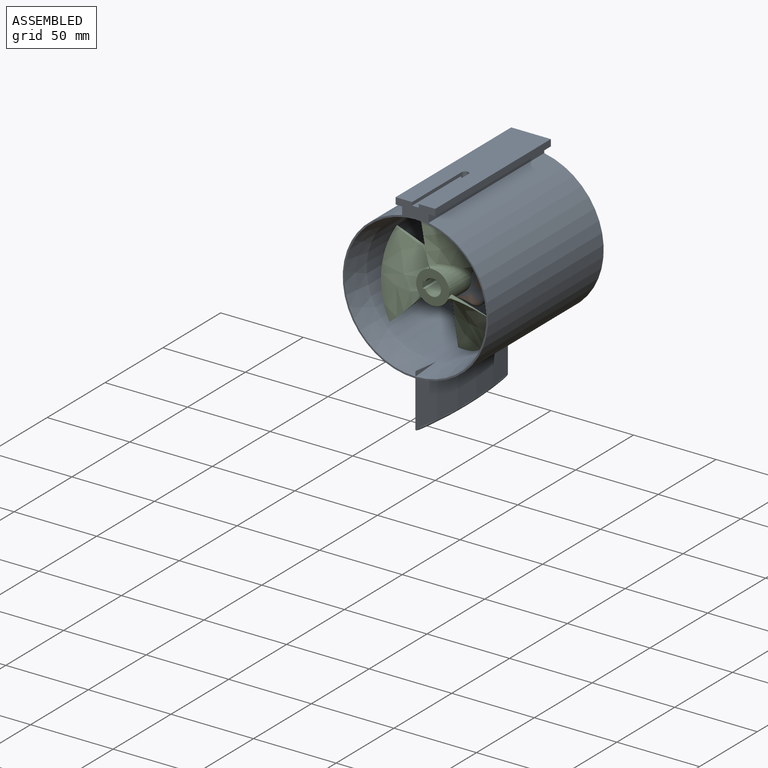
[diagram: assembled view]
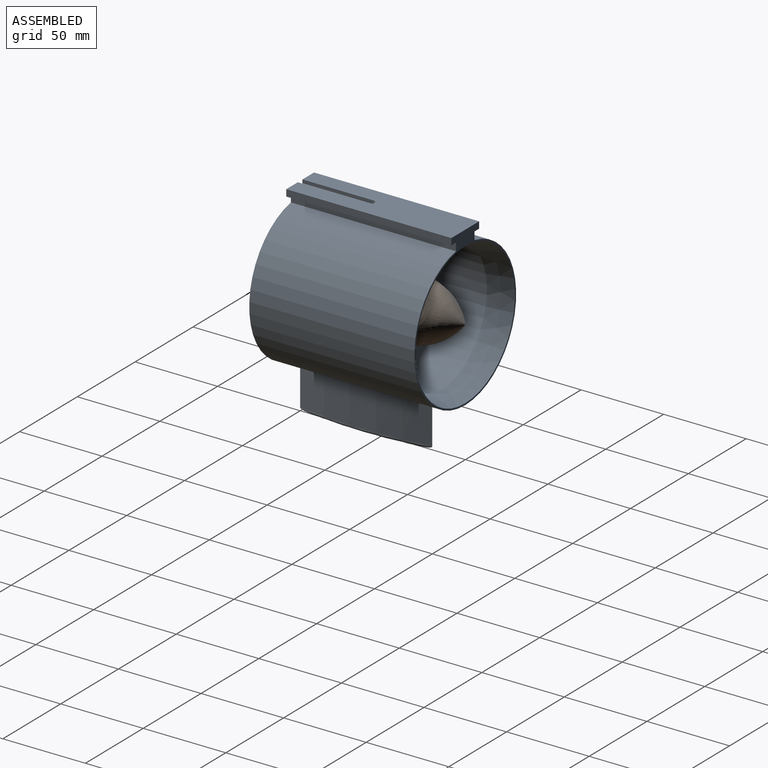
[diagram: assembled view, second angle]
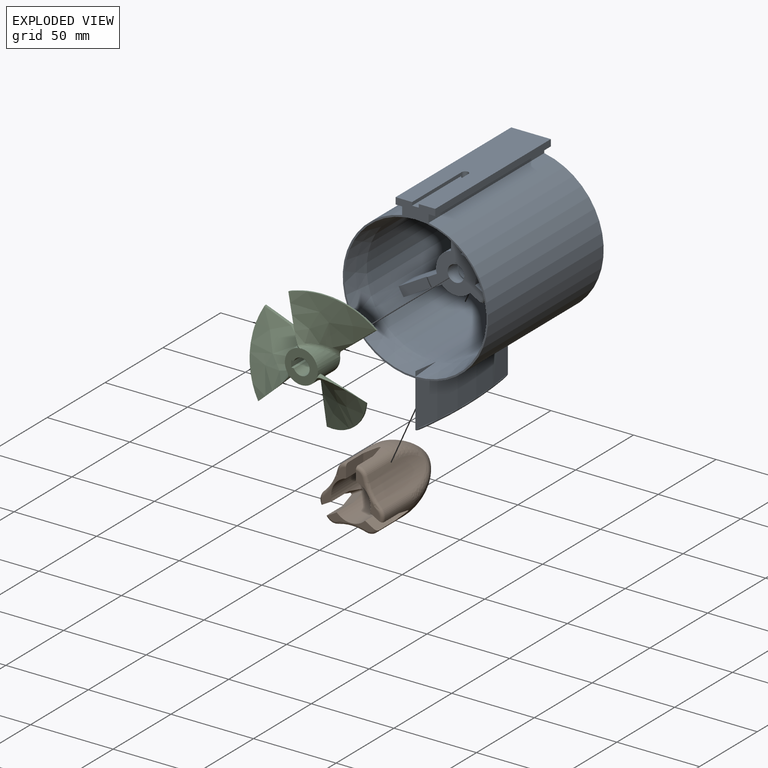
[diagram: exploded view]
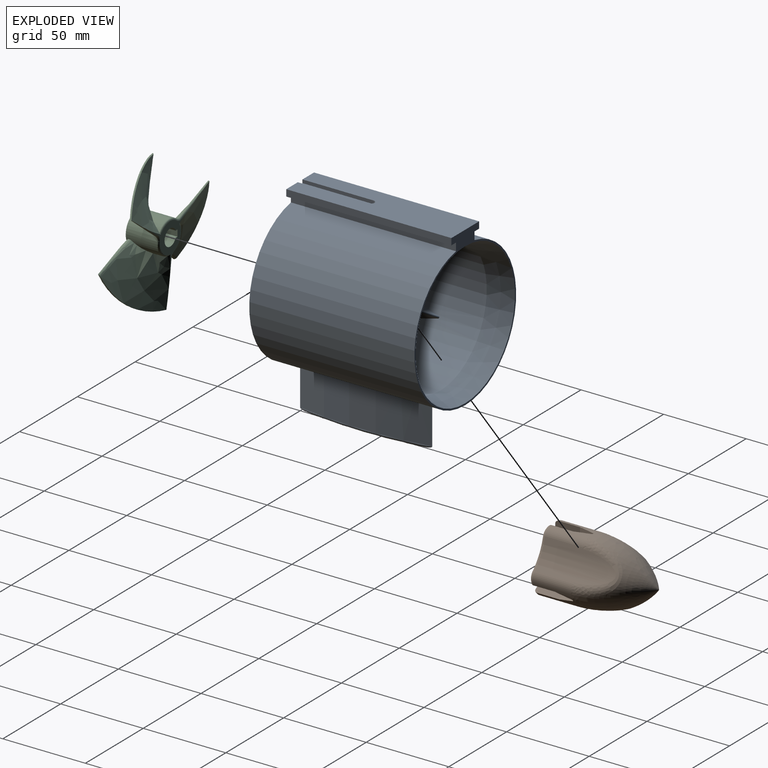
[diagram: exploded view, second angle]
ASSEMBLY  parts=3 mates=3
PART A: 58 faces, bbox 88.1x100.7x126.1 mm
  f0: cylinder r=44mm len=100mm, axis (0,1,0), area 25678.3mm2, adj f3,f17,f26,f27,f53,f54
  f1: cone r=40mm half-angle=11.3deg, axis (0,-1,0), area 3955.4mm2, adj f3,f16,f50,f51,f52
  f2: cylinder r=2mm len=19mm, axis (0,1,0), area 222.8mm2, adj f18,f46,f49
  f3: plane 96x88mm, normal (0,-1,0), area 429.2mm2, adj f0,f1,f4,f26,f27,f28,f29,f30
  f4: plane 100x24mm, normal (0,0,1), area 2221.7mm2, adj f3,f17,f29,f30,f45,f46,f47
  f5: plane 24.48x15mm, normal (-0.5,0,0.87), area 382.9mm2, adj f11,f15,f16,f21,f35,f37
  f6: plane 28.27x15mm, normal (-1,0,0), area 382.9mm2, adj f11,f15,f16,f23,f33,f36
  f7: plane 24.48x15mm, normal (0.5,0,-0.87), area 382.9mm2, adj f11,f12,f16,f22,f35,f37
  f8: plane 24.48x15mm, normal (0.5,0,0.87), area 382.9mm2, adj f11,f13,f16,f20,f34,f38
  f9: plane 24.48x15mm, normal (-0.5,0,-0.87), area 382.9mm2, adj f11,f12,f16,f19,f34,f38
  f10: plane 28.27x15mm, normal (1,0,0), area 382.9mm2, adj f11,f13,f16,f24,f33,f36
  f11: plane 33.78x30.04mm, normal (0,-1,0), area 481mm2, adj f5,f6,f7,f8,f9,f10,f12,f13
  f12: cylinder r=12mm len=25mm, axis (0,1,0), area 502.1mm2, adj f7,f9,f11,f18,f19,f22,f39,f42
  f13: cylinder r=12mm len=25mm, axis (0,1,0), area 502.1mm2, adj f8,f10,f11,f18,f20,f24,f40,f44
  f14: cylinder r=5mm len=25mm, axis (0,1,0), area 735.2mm2, adj f11,f18,f32
  f15: cylinder r=12mm len=25mm, axis (0,1,0), area 502.1mm2, adj f5,f6,f11,f18,f21,f23,f41,f43
  f16: cylinder r=40mm len=80mm, axis (0,1,0), area 17253.9mm2, adj f1,f5,f6,f7,f8,f9,f10,f18
  f17: plane 96x88mm, normal (0,1,0), area 437.2mm2, adj f0,f4,f25,f26,f27,f28,f29,f30
  f18: plane 69.35x60.07mm, normal (0,1,0), area 364.9mm2, adj f2,f12,f13,f14,f15,f16,f32,f39
  f19: plane 25.84x16.09mm, normal (-0.49,0.24,-0.84), area 276.6mm2, adj f9,f12,f16,f39
  f20: plane 25.43x16.33mm, normal (0.49,0.24,0.84), area 276.6mm2, adj f8,f13,f16,f40
  f21: plane 25.43x16.33mm, normal (-0.49,0.24,0.84), area 276.6mm2, adj f5,f15,f16,f41
  f22: plane 25.84x16.09mm, normal (0.49,0.24,-0.84), area 276.6mm2, adj f7,f12,f16,f42
  f23: plane 28.45x9.62mm, normal (-0.97,0.24,0), area 276.6mm2, adj f6,f15,f16,f43
  f24: plane 28.45x9.62mm, normal (0.97,0.24,0), area 276.6mm2, adj f10,f13,f16,f44
  f25: cone r=43mm half-angle=11.3deg, axis (0,1,0), area 3988.7mm2, adj f16,f17
  f26: plane 100x4.73mm, normal (-1,0,0), area 473.3mm2, adj f0,f3,f17,f31
  f27: plane 100x4.73mm, normal (1,0,0), area 473.3mm2, adj f0,f3,f17,f28
  f28: plane 100x4mm, normal (0,0,-1), area 400mm2, adj f3,f17,f27,f30
  f29: plane 100x4mm, normal (-1,0,0), area 400mm2, adj f3,f4,f17,f31
  f30: plane 100x4mm, normal (1,0,0), area 400mm2, adj f3,f4,f17,f28
  f31: plane 100x4mm, normal (0,0,-1), area 400mm2, adj f3,f17,f26,f29
  f32: bspline ~25x12.52mm, area 166.8mm2, adj f11,f14,f18
  f33: plane 20.23x6mm, normal (0,-1,0), area 120.2mm2, adj f6,f10,f16,f36
  f34: plane 20.42x15.25mm, normal (0,-1,0), area 120.2mm2, adj f8,f9,f16,f38
  f35: plane 20.42x15.25mm, normal (0,-1,0), area 120.2mm2, adj f5,f7,f16,f37
  f36: torus R=18mm, axis (0,-1,0), area 18.9mm2, adj f6,f10,f11,f33
  f37: torus R=18mm, axis (0,-1,0), area 18.9mm2, adj f5,f7,f11,f35
  f38: torus R=18mm, axis (0,-1,0), area 18.9mm2, adj f8,f9,f11,f34
  f39: cylinder r=0.6mm len=24.55mm, axis (0.87,0,-0.5), area 22.3mm2, adj f12,f16,f18,f19
  f40: cylinder r=0.6mm len=24.55mm, axis (0.87,0,-0.5), area 22.3mm2, adj f13,f16,f18,f20
  f41: cylinder r=0.6mm len=24.55mm, axis (-0.87,0,-0.5), area 22.3mm2, adj f15,f16,f18,f21
  f42: cylinder r=0.6mm len=24.55mm, axis (-0.87,0,-0.5), area 22.3mm2, adj f12,f16,f18,f22
  f43: cylinder r=0.6mm len=28.02mm, axis (0,0,1), area 22.3mm2, adj f15,f16,f18,f23
  f44: cylinder r=0.6mm len=28.02mm, axis (0,0,1), area 22.3mm2, adj f13,f16,f18,f24
  f45: plane 43x2mm, normal (-1,0,0), area 86mm2, adj f3,f4,f46,f48
  f46: cylinder r=2mm len=43.5mm, axis (0,0,1), area 518.1mm2, adj f2,f4,f45,f47,f48
  f47: plane 43x2mm, normal (1,0,0), area 86mm2, adj f3,f4,f46,f48
  f48: plane 43x4mm, normal (0,0,1), area 165.7mm2, adj f3,f45,f46,f47
  f49: plane 4x4mm, normal (0,1,0), area 12.6mm2, adj f2
  f50: plane 15.13x4.19mm, normal (0,0,1), area 32.8mm2, adj f1,f51,f52
  f51: cylinder r=240mm len=14.74mm, axis (0,0,1), area 22.3mm2, adj f1,f50,f52
  f52: cylinder r=240mm len=14.74mm, axis (0,0,1), area 22.3mm2, adj f1,f50,f51
  f53: cylinder r=240mm len=80mm, axis (0,0,1), area 2256mm2, adj f0,f54,f57
  f54: cylinder r=240mm len=80mm, axis (0,0,1), area 2256mm2, adj f0,f53,f56
  f55: plane 50.75x2.71mm, normal (0,0,-1), area 91.9mm2, adj f56,f57
  f56: torus R=238mm, axis (0,0,1), area 221.5mm2, adj f54,f55,f57
  f57: torus R=238mm, axis (0,0,1), area 221.5mm2, adj f53,f55,f56
PART B: 63 faces, bbox 120.4x120x130.2 mm
  f0: plane 13.87x5.09mm, normal (0,0,-1), area 29.3mm2, adj f1,f58,f60,f61,f62
  f1: torus R=32mm, axis (0,0,-1), area 55.9mm2, adj f0,f2,f56,f57,f62
  f2: plane 13.87x5.09mm, normal (0,0,-1), area 29.3mm2, adj f1,f3,f55,f57,f58
  f3: torus R=18mm, axis (0,0,-1), area 3.8mm2, adj f2,f4,f55,f57
  f4: cylinder r=20mm len=23mm, axis (0,0,1), area 45.6mm2, adj f3,f5,f52,f53,f54,f55
  f5: revolved ~39.95x39.94mm, area 1994.7mm2, adj f4,f6,f10,f11,f28,f29,f30,f31
  f6: cylinder r=20mm len=23mm, axis (0,0,1), area 45.6mm2, adj f5,f7,f8,f9,f60,f61
  f7: plane 9.57x8.47mm, normal (-0.49,0.84,-0.24), area 79.3mm2, adj f6,f8,f58,f60
  f8: cylinder r=0.6mm len=7.23mm, axis (-0.87,-0.5,0), area 6.4mm2, adj f6,f7,f51,f58
  f9: cylinder r=6mm len=23mm, axis (0,0,1), area 153.8mm2, adj f6,f10,f56,f62
  f10: bspline ~30.19x29.38mm, area 317.5mm2, adj f5,f9,f54,f56
  f11: plane 6.96x4.05mm, normal (0,0,-1), area 0.5mm2, adj f5,f12,f52,f58
  f12: cylinder r=0.6mm len=7.23mm, axis (0.87,-0.5,0), area 6.4mm2, adj f11,f13,f28,f58
  f13: plane 9.57x7.97mm, normal (-0.49,-0.84,-0.24), area 79.3mm2, adj f12,f14,f28,f58
  f14: plane 15.15x7.21mm, normal (-0.5,-0.87,0), area 121.5mm2, adj f13,f15,f27,f28,f58
  f15: torus R=18mm, axis (0,0,-1), area 3.8mm2, adj f14,f16,f27,f28
  f16: torus R=4mm, axis (0,0,-1), area 18.5mm2, adj f15,f17,f26,f27
  f17: cylinder r=6mm len=23mm, axis (0,0,1), area 153.8mm2, adj f16,f18,f28,f29
  f18: cylinder r=30mm len=45.19mm, axis (0,0,-1), area 694.6mm2, adj f17,f19,f26,f29
  f19: cylinder r=6mm len=23mm, axis (0,0,1), area 153.8mm2, adj f18,f20,f29,f30
  f20: torus R=4mm, axis (0,0,-1), area 18.5mm2, adj f19,f21,f25,f26
  f21: plane 11.75x7.39mm, normal (0,0,-1), area 29.3mm2, adj f20,f22,f25,f26,f58
  f22: plane 15.15x8.31mm, normal (-1,0,0), area 121.5mm2, adj f21,f23,f25,f30,f58
  f23: plane 9.57x8.4mm, normal (-0.97,0,-0.24), area 79.3mm2, adj f22,f24,f30,f58
  f24: cylinder r=0.6mm len=8.02mm, axis (0,1,0), area 6.4mm2, adj f23,f30,f31,f58
  f25: torus R=18mm, axis (0,0,-1), area 3.8mm2, adj f20,f21,f22,f30
  f26: torus R=32mm, axis (0,0,-1), area 55.9mm2, adj f16,f18,f20,f21,f27
  f27: plane 12.28x6.98mm, normal (0,0,-1), area 29.3mm2, adj f14,f15,f16,f26,f58
  f28: cylinder r=20mm len=23mm, axis (0,0,1), area 45.6mm2, adj f5,f12,f13,f14,f15,f17
  f29: bspline ~30.19x25.45mm, area 317.5mm2, adj f5,f17,f18,f19
  f30: cylinder r=20mm len=23mm, axis (0,0,1), area 45.6mm2, adj f5,f19,f22,f23,f24,f25
  f31: plane 8x0.06mm, normal (0,0,-1), area 0.5mm2, adj f5,f24,f32,f58
  f32: cylinder r=0.6mm len=8.02mm, axis (0,1,0), area 6.4mm2, adj f31,f33,f48,f58
  f33: plane 9.57x8.4mm, normal (0.97,0,-0.24), area 79.3mm2, adj f32,f34,f48,f58
  f34: plane 15.15x8.31mm, normal (1,0,0), area 121.5mm2, adj f33,f35,f47,f48,f58
  f35: torus R=18mm, axis (0,0,-1), area 3.8mm2, adj f34,f36,f47,f48
  f36: torus R=4mm, axis (0,0,-1), area 18.5mm2, adj f35,f37,f46,f47
  f37: cylinder r=6mm len=23mm, axis (0,0,1), area 153.8mm2, adj f36,f38,f48,f49
  f38: cylinder r=30mm len=45.19mm, axis (0,0,-1), area 694.6mm2, adj f37,f39,f46,f49
  f39: cylinder r=6mm len=23mm, axis (0,0,1), area 153.8mm2, adj f38,f40,f49,f50
  f40: torus R=4mm, axis (0,0,-1), area 18.5mm2, adj f39,f41,f45,f46
  f41: plane 12.28x6.98mm, normal (0,0,-1), area 29.3mm2, adj f40,f42,f45,f46,f58
  f42: plane 15.15x7.21mm, normal (0.5,-0.87,0), area 121.5mm2, adj f41,f43,f45,f50,f58
  f43: plane 9.57x7.97mm, normal (0.49,-0.84,-0.24), area 79.3mm2, adj f42,f44,f50,f58
  f44: cylinder r=0.6mm len=7.23mm, axis (-0.87,-0.5,0), area 6.4mm2, adj f43,f50,f51,f58
  f45: torus R=18mm, axis (0,0,-1), area 3.8mm2, adj f40,f41,f42,f50
  f46: torus R=32mm, axis (0,0,-1), area 55.9mm2, adj f36,f38,f40,f41,f47
  f47: plane 11.75x7.39mm, normal (0,0,-1), area 29.3mm2, adj f34,f35,f36,f46,f58
  f48: cylinder r=20mm len=23mm, axis (0,0,1), area 45.6mm2, adj f5,f32,f33,f34,f35,f37
  f49: bspline ~30.19x25.45mm, area 317.5mm2, adj f5,f37,f38,f39
  f50: cylinder r=20mm len=23mm, axis (0,0,1), area 45.6mm2, adj f5,f39,f42,f43,f44,f45
  f51: plane 86.96x84.06mm, normal (0,0,-1), area 0.5mm2, adj f5,f8,f44,f58
  f52: cylinder r=0.6mm len=7.23mm, axis (0.87,-0.5,0), area 6.4mm2, adj f4,f11,f53,f58
  f53: plane 9.57x8.47mm, normal (0.49,0.84,-0.24), area 79.3mm2, adj f4,f52,f55,f58
  f54: cylinder r=6mm len=23mm, axis (0,0,1), area 153.8mm2, adj f4,f10,f56,f57
  f55: plane 15.15x7.21mm, normal (0.5,0.87,0), area 121.5mm2, adj f2,f3,f4,f53,f58
  f56: cylinder r=30mm len=45.19mm, axis (0,0,-1), area 694.6mm2, adj f1,f9,f10,f54
  f57: torus R=4mm, axis (0,0,-1), area 18.5mm2, adj f1,f2,f3,f54
  f58: cylinder r=12mm len=45mm, axis (0,0,1), area 3014.7mm2, adj f0,f2,f7,f8,f11,f12,f13,f14
  f59: plane 24x24mm, normal (0,0,-1), area 452.4mm2, adj f58
  f60: plane 15.15x7.21mm, normal (-0.5,0.87,0), area 121.5mm2, adj f0,f6,f7,f58,f61
  f61: torus R=18mm, axis (0,0,-1), area 3.8mm2, adj f0,f6,f60,f62
  f62: torus R=4mm, axis (0,0,-1), area 18.5mm2, adj f0,f1,f9,f61
PART C: 33 faces, bbox 88.1x23.8x88.3 mm
  f0: plane 29.38x25.96mm, normal (0,1,0), area 187.5mm2, adj f1,f2,f3,f7,f8,f9,f20,f21
  f1: bspline ~39x38.04mm, area 1019.2mm2, adj f0,f6,f7,f12,f23,f29
  f2: bspline ~46.43x36.51mm, area 1019.2mm2, adj f0,f5,f8,f11,f25,f28
  f3: bspline ~47.26x32.68mm, area 1019.2mm2, adj f0,f4,f9,f10,f21,f27
  f4: bspline ~35.65x29.63mm, area 75.9mm2, adj f3,f10,f11,f16,f17,f27
  f5: bspline ~37.04x22.09mm, area 75.9mm2, adj f2,f11,f12,f15,f18,f28
  f6: bspline ~39.66x14.42mm, area 75.9mm2, adj f1,f10,f12,f14,f19,f29
  f7: bspline ~35.43x7.02mm, area 60.1mm2, adj f0,f1,f14,f20,f29
  f8: bspline ~31.47x23.11mm, area 60.1mm2, adj f0,f2,f15,f22,f28
  f9: bspline ~33.07x19.06mm, area 60.1mm2, adj f0,f3,f16,f24,f27
  f10: cylinder r=10mm len=19.16mm, axis (0,1,0), area 309mm2, adj f3,f4,f6,f13,f19,f21
  f11: cylinder r=10mm len=19mm, axis (0,1,0), area 309mm2, adj f2,f4,f5,f13,f17,f25
  f12: cylinder r=10mm len=19.97mm, axis (0,1,0), area 309mm2, adj f1,f5,f6,f13,f18,f23
  f13: plane 20x20mm, normal (0,-1,0), area 230.3mm2, adj f10,f11,f12,f26,f30,f31,f32
  f14: bspline ~46.66x44.03mm, area 1024.2mm2, adj f6,f7,f19,f29
  f15: bspline ~61.15x38.97mm, area 1024.2mm2, adj f5,f8,f18,f28
  f16: bspline ~59.94x35.35mm, area 1024.2mm2, adj f4,f9,f17,f27
  f17: bspline ~22.97x17.33mm, area 61.1mm2, adj f4,f11,f16,f24
  f18: bspline ~22.97x14.94mm, area 61.1mm2, adj f5,f12,f15,f22
  f19: bspline ~22.97x15.68mm, area 61.1mm2, adj f6,f10,f14,f20
  f20: bspline ~3.8x3.62mm, area 7mm2, adj f0,f7,f19,f21
  f21: torus R=9mm, axis (0,-1,0), area 24.9mm2, adj f0,f3,f10,f20
  f22: bspline ~4.94x2.69mm, area 7mm2, adj f0,f8,f18,f23
  f23: torus R=9mm, axis (0,-1,0), area 24.9mm2, adj f0,f1,f12,f22
  f24: bspline ~5.06x2.32mm, area 7mm2, adj f0,f9,f17,f25
  f25: torus R=9mm, axis (0,-1,0), area 24.9mm2, adj f0,f2,f11,f24
  f26: cylinder r=5mm len=20mm, axis (0,-1,0), area 546mm2, adj f0,f13,f31,f32
  f27: cylinder r=39mm len=44.73mm, axis (0,1,0), area 46.3mm2, adj f3,f4,f9,f16
  f28: cylinder r=39mm len=42.22mm, axis (0,1,0), area 46.3mm2, adj f2,f5,f8,f15
  f29: cylinder r=39mm len=35.25mm, axis (0,1,0), area 46.3mm2, adj f1,f6,f7,f14
  f30: plane 20x4mm, normal (-1,0,0), area 80mm2, adj f0,f13,f31,f32
  f31: plane 20x1.62mm, normal (0,0,1), area 32.3mm2, adj f0,f13,f26,f30
  f32: plane 20x1.62mm, normal (0,0,-1), area 32.3mm2, adj f0,f13,f26,f30
PLACE A t=(0,40,0)mm
PLACE B rot(axis=(-0.77,0.45,0.45),104.5deg) t=(0,0,0)mm
PLACE C rot(axis=(0,1,0),180deg) t=(0,-25,0)mm
MATE planar B.f13 <-> A.f19  axis (0.49,-0.24,0.84) through (12.84,-5.24,-9.5)mm
MATE revolute B.f3 <-> A.f14  axis (0,-1,0) through (0,0,0)mm
MATE revolute A.f15 <-> C.f26  axis (0,-1,0) through (0,-25,0)mm
